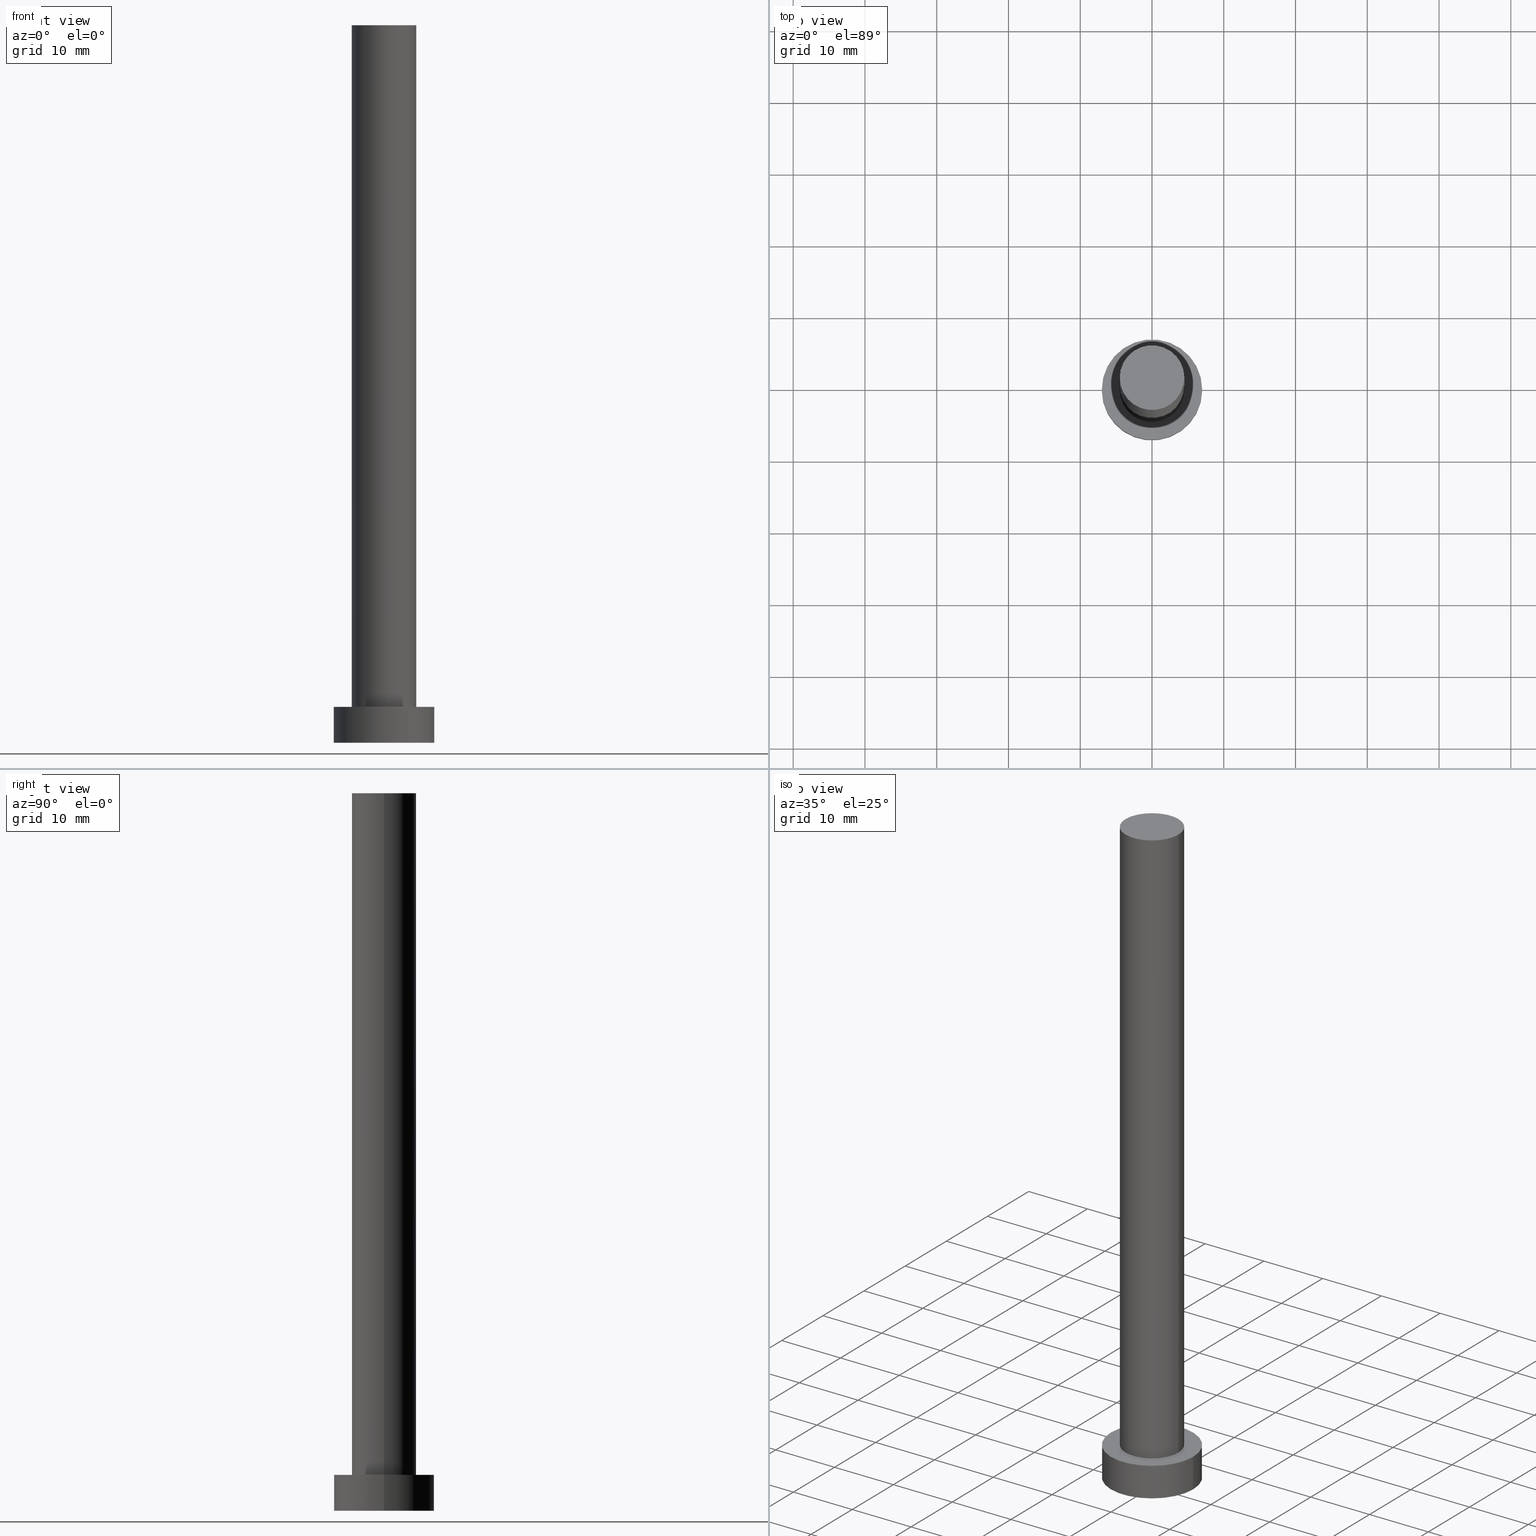
[diagram: canonical four-view strip — front | top / right | iso, engineering-drawing reading convention]
A machine part, canonical four-view strip (front | top / right | iso — engineering-drawing reading convention). The complete STEP part file that produces these views, byte-faithful:
ISO-10303-21;
HEADER;
FILE_DESCRIPTION (( 'STEP AP203' ),
    '1' );
FILE_NAME ('96f8.STEP',
    '2023-02-13T13:52:13',
    ( '' ),
    ( '' ),
    'SwSTEP 2.0',
    'SolidWorks 2019',
    '' );
FILE_SCHEMA (( 'CONFIG_CONTROL_DESIGN' ));
ENDSEC;

DATA;
#1 = AXIS2_PLACEMENT_3D ( 'NONE', #224, #6, #155 ) ;
#2 = EDGE_CURVE ( 'NONE', #249, #144, #247, .T. ) ;
#3 = APPROVAL_ROLE ( '' ) ;
#4 = PERSON_AND_ORGANIZATION ( #209, #250 ) ;
#5 = APPROVAL_STATUS ( 'not_yet_approved' ) ;
#6 = DIRECTION ( 'NONE',  ( 0.000000000000000000, 0.000000000000000000, 1.000000000000000000 ) ) ;
#7 = ORIENTED_EDGE ( 'NONE', *, *, #2, .F. ) ;
#8 = CARTESIAN_POINT ( 'NONE',  ( 7.000000000000000000, 8.572527594031473190E-16, 5.000000000000000000 ) ) ;
#9 = ORIENTED_EDGE ( 'NONE', *, *, #170, .T. ) ;
#10 = AXIS2_PLACEMENT_3D ( 'NONE', #125, #83, #46 ) ;
#11 = CARTESIAN_POINT ( 'NONE',  ( 4.500000000000000000, 5.510910596163088569E-16, 5.000000000000000000 ) ) ;
#12 = DATE_AND_TIME ( #255, #34 ) ;
#13 = DIRECTION ( 'NONE',  ( -0.000000000000000000, -0.000000000000000000, -1.000000000000000000 ) ) ;
#14 = FACE_OUTER_BOUND ( 'NONE', #66, .T. ) ;
#15 = APPROVAL_STATUS ( 'not_yet_approved' ) ;
#16 = ORIENTED_EDGE ( 'NONE', *, *, #149, .T. ) ;
#17 = ORIENTED_EDGE ( 'NONE', *, *, #41, .F. ) ;
#18 = ADVANCED_FACE ( 'NONE', ( #220 ), #200, .T. ) ;
#19 = DIRECTION ( 'NONE',  ( -0.000000000000000000, -0.000000000000000000, -1.000000000000000000 ) ) ;
#20 = EDGE_CURVE ( 'NONE', #249, #45, #159, .T. ) ;
#21 = APPLICATION_PROTOCOL_DEFINITION ( 'international standard', 'config_control_design', 1994, #109 ) ;
#22 = DIRECTION ( 'NONE',  ( 0.000000000000000000, 0.000000000000000000, 1.000000000000000000 ) ) ;
#23 = CC_DESIGN_PERSON_AND_ORGANIZATION_ASSIGNMENT ( #186, #51, ( #105 ) ) ;
#24 = DIRECTION ( 'NONE',  ( -0.000000000000000000, -0.000000000000000000, -1.000000000000000000 ) ) ;
#25 = DIRECTION ( 'NONE',  ( 0.000000000000000000, 0.000000000000000000, 1.000000000000000000 ) ) ;
#26 = DIRECTION ( 'NONE',  ( -1.000000000000000000, 0.000000000000000000, 0.000000000000000000 ) ) ;
#27 = CARTESIAN_POINT ( 'NONE',  ( 4.500000000000000000, 5.510910596163088569E-16, 100.0000000000000000 ) ) ;
#28 = DIRECTION ( 'NONE',  ( -0.000000000000000000, -0.000000000000000000, -1.000000000000000000 ) ) ;
#29 = CARTESIAN_POINT ( 'NONE',  ( 0.000000000000000000, 0.000000000000000000, 100.0000000000000000 ) ) ;
#30 = CARTESIAN_POINT ( 'NONE',  ( -4.500000000000000000, 0.000000000000000000, 100.0000000000000000 ) ) ;
#31 = ORIENTED_EDGE ( 'NONE', *, *, #216, .T. ) ;
#32 = CARTESIAN_POINT ( 'NONE',  ( -7.000000000000000000, 0.000000000000000000, 5.000000000000000000 ) ) ;
#33 = VERTEX_POINT ( 'NONE', #107 ) ;
#34 = LOCAL_TIME ( 14, 52, 13.00000000000000000, #204 ) ;
#35 = AXIS2_PLACEMENT_3D ( 'NONE', #157, #28, #26 ) ;
#36 = AXIS2_PLACEMENT_3D ( 'NONE', #180, #25, #112 ) ;
#37 = PERSON_AND_ORGANIZATION ( #209, #250 ) ;
#38 = PERSON_AND_ORGANIZATION_ROLE ( 'design_owner' ) ;
#39 = CARTESIAN_POINT ( 'NONE',  ( -4.500000000000000000, 0.000000000000000000, 5.000000000000000000 ) ) ;
#40 = CIRCLE ( 'NONE', #97, 7.000000000000000000 ) ;
#41 = EDGE_CURVE ( 'NONE', #45, #249, #232, .T. ) ;
#42 =( LENGTH_UNIT ( ) NAMED_UNIT ( * ) SI_UNIT ( .MILLI., .METRE. ) );
#43 = AXIS2_PLACEMENT_3D ( 'NONE', #199, #67, #196 ) ;
#44 = DIRECTION ( 'NONE',  ( 0.000000000000000000, 0.000000000000000000, 1.000000000000000000 ) ) ;
#45 = VERTEX_POINT ( 'NONE', #222 ) ;
#46 = DIRECTION ( 'NONE',  ( 1.000000000000000000, 0.000000000000000000, 0.000000000000000000 ) ) ;
#47 = ADVANCED_FACE ( 'NONE', ( #139, #195 ), #90, .T. ) ;
#48 = CYLINDRICAL_SURFACE ( 'NONE', #35, 7.000000000000000000 ) ;
#49 = CC_DESIGN_DATE_AND_TIME_ASSIGNMENT ( #77, #152, ( #207 ) ) ;
#50 = DIRECTION ( 'NONE',  ( 1.000000000000000000, 0.000000000000000000, -0.000000000000000000 ) ) ;
#51 = PERSON_AND_ORGANIZATION_ROLE ( 'classification_officer' ) ;
#52 = EDGE_LOOP ( 'NONE', ( #60, #156, #106, #245 ) ) ;
#53 = AXIS2_PLACEMENT_3D ( 'NONE', #29, #13, #89 ) ;
#54 = CARTESIAN_POINT ( 'NONE',  ( 0.000000000000000000, 0.000000000000000000, 100.0000000000000000 ) ) ;
#55 = DIRECTION ( 'NONE',  ( 1.000000000000000000, 0.000000000000000000, 0.000000000000000000 ) ) ;
#56 = APPROVAL_PERSON_ORGANIZATION ( #4, #183, #3 ) ;
#57 = AXIS2_PLACEMENT_3D ( 'NONE', #61, #44, #175 ) ;
#58 = UNCERTAINTY_MEASURE_WITH_UNIT (LENGTH_MEASURE( 1.000000000000000082E-05 ), #42, 'distance_accuracy_value', 'NONE');
#59 = DIRECTION ( 'NONE',  ( 1.000000000000000000, 0.000000000000000000, 0.000000000000000000 ) ) ;
#60 = ORIENTED_EDGE ( 'NONE', *, *, #20, .F. ) ;
#61 = CARTESIAN_POINT ( 'NONE',  ( 0.000000000000000000, 0.000000000000000000, 0.000000000000000000 ) ) ;
#62 = DIRECTION ( 'NONE',  ( -0.000000000000000000, -0.000000000000000000, -1.000000000000000000 ) ) ;
#63 = FACE_OUTER_BOUND ( 'NONE', #126, .T. ) ;
#64 = DATE_AND_TIME ( #208, #206 ) ;
#65 = CC_DESIGN_PERSON_AND_ORGANIZATION_ASSIGNMENT ( #226, #181, ( #234 ) ) ;
#66 = EDGE_LOOP ( 'NONE', ( #69, #158, #31, #177 ) ) ;
#67 = DIRECTION ( 'NONE',  ( 0.000000000000000000, 0.000000000000000000, 1.000000000000000000 ) ) ;
#68 = SECURITY_CLASSIFICATION_LEVEL ( 'unclassified' ) ;
#69 = ORIENTED_EDGE ( 'NONE', *, *, #235, .F. ) ;
#70 = DESIGN_CONTEXT ( 'detailed design', #109, 'design' ) ;
#71 = VECTOR ( 'NONE', #19, 1000.000000000000000 ) ;
#72 = AXIS2_PLACEMENT_3D ( 'NONE', #251, #137, #50 ) ;
#73 = ADVANCED_FACE ( 'NONE', ( #146 ), #48, .T. ) ;
#74 = CALENDAR_DATE ( 2023, 13, 2 ) ;
#75 = CALENDAR_DATE ( 2023, 13, 2 ) ;
#76 = AXIS2_PLACEMENT_3D ( 'NONE', #118, #135, #55 ) ;
#77 = DATE_AND_TIME ( #75, #80 ) ;
#78 = APPLICATION_PROTOCOL_DEFINITION ( 'international standard', 'config_control_design', 1994, #230 ) ;
#79 = DIRECTION ( 'NONE',  ( -1.000000000000000000, 0.000000000000000000, 0.000000000000000000 ) ) ;
#80 = LOCAL_TIME ( 14, 52, 13.00000000000000000, #101 ) ;
#81 = ORIENTED_EDGE ( 'NONE', *, *, #153, .F. ) ;
#82 = MANIFOLD_SOLID_BREP ( 'P�idat vysunut�m3', #237 ) ;
#83 = DIRECTION ( 'NONE',  ( 0.000000000000000000, 0.000000000000000000, 1.000000000000000000 ) ) ;
#84 = ORIENTED_EDGE ( 'NONE', *, *, #133, .T. ) ;
#85 = AXIS2_PLACEMENT_3D ( 'NONE', #162, #123, #217 ) ;
#86 = APPROVAL ( #161, 'NEUR�EN�' ) ;
#87 = CARTESIAN_POINT ( 'NONE',  ( 0.000000000000000000, 0.000000000000000000, 5.000000000000000000 ) ) ;
#88 = DATE_AND_TIME ( #254, #198 ) ;
#89 = DIRECTION ( 'NONE',  ( -1.000000000000000000, 0.000000000000000000, 0.000000000000000000 ) ) ;
#90 = PLANE ( 'NONE',  #43 ) ;
#91 =( GEOMETRIC_REPRESENTATION_CONTEXT ( 3 ) GLOBAL_UNCERTAINTY_ASSIGNED_CONTEXT ( ( #58 ) ) GLOBAL_UNIT_ASSIGNED_CONTEXT ( ( #42, #121, #238 ) ) REPRESENTATION_CONTEXT ( 'NONE', 'WORKASPACE' ) );
#92 = COORDINATED_UNIVERSAL_TIME_OFFSET ( 1, 0, .AHEAD. ) ;
#93 = ORIENTED_EDGE ( 'NONE', *, *, #133, .F. ) ;
#94 = CC_DESIGN_PERSON_AND_ORGANIZATION_ASSIGNMENT ( #132, #143, ( #234 ) ) ;
#95 = APPROVAL_DATE_TIME ( #88, #236 ) ;
#96 = VECTOR ( 'NONE', #62, 1000.000000000000000 ) ;
#97 = AXIS2_PLACEMENT_3D ( 'NONE', #99, #22, #100 ) ;
#98 = EDGE_CURVE ( 'NONE', #144, #223, #145, .T. ) ;
#99 = CARTESIAN_POINT ( 'NONE',  ( 0.000000000000000000, 0.000000000000000000, 0.000000000000000000 ) ) ;
#100 = DIRECTION ( 'NONE',  ( 1.000000000000000000, 0.000000000000000000, 0.000000000000000000 ) ) ;
#101 = COORDINATED_UNIVERSAL_TIME_OFFSET ( 1, 0, .AHEAD. ) ;
#102 = FACE_OUTER_BOUND ( 'NONE', #130, .T. ) ;
#103 = ORIENTED_EDGE ( 'NONE', *, *, #216, .F. ) ;
#104 = PLANE ( 'NONE',  #57 ) ;
#105 = SECURITY_CLASSIFICATION ( '', '', #68 ) ;
#106 = ORIENTED_EDGE ( 'NONE', *, *, #98, .T. ) ;
#107 = CARTESIAN_POINT ( 'NONE',  ( -7.000000000000000000, 0.000000000000000000, 5.000000000000000000 ) ) ;
#108 = ORIENTED_EDGE ( 'NONE', *, *, #188, .T. ) ;
#109 = APPLICATION_CONTEXT ( 'configuration controlled 3d designs of mechanical parts and assemblies' ) ;
#110 = CARTESIAN_POINT ( 'NONE',  ( 0.000000000000000000, 0.000000000000000000, 5.000000000000000000 ) ) ;
#111 = EDGE_LOOP ( 'NONE', ( #7, #17, #9, #16 ) ) ;
#112 = DIRECTION ( 'NONE',  ( 1.000000000000000000, 0.000000000000000000, 0.000000000000000000 ) ) ;
#113 = CC_DESIGN_APPROVAL ( #183, ( #207 ) ) ;
#114 = COORDINATED_UNIVERSAL_TIME_OFFSET ( 1, 0, .AHEAD. ) ;
#115 = ORIENTED_EDGE ( 'NONE', *, *, #153, .T. ) ;
#116 = ADVANCED_FACE ( 'NONE', ( #102 ), #104, .F. ) ;
#117 = LINE ( 'NONE', #215, #229 ) ;
#118 = CARTESIAN_POINT ( 'NONE',  ( 0.000000000000000000, 0.000000000000000000, 0.000000000000000000 ) ) ;
#119 = DATE_AND_TIME ( #74, #120 ) ;
#120 = LOCAL_TIME ( 14, 52, 13.00000000000000000, #239 ) ;
#121 =( NAMED_UNIT ( * ) PLANE_ANGLE_UNIT ( ) SI_UNIT ( $, .RADIAN. ) );
#122 = CARTESIAN_POINT ( 'NONE',  ( 0.000000000000000000, 0.000000000000000000, 100.0000000000000000 ) ) ;
#123 = DIRECTION ( 'NONE',  ( 0.000000000000000000, 0.000000000000000000, 1.000000000000000000 ) ) ;
#124 = VERTEX_POINT ( 'NONE', #179 ) ;
#125 = CARTESIAN_POINT ( 'NONE',  ( 0.000000000000000000, 0.000000000000000000, 5.000000000000000000 ) ) ;
#126 = EDGE_LOOP ( 'NONE', ( #205, #218 ) ) ;
#127 = DIRECTION ( 'NONE',  ( -0.000000000000000000, -0.000000000000000000, -1.000000000000000000 ) ) ;
#128 = VERTEX_POINT ( 'NONE', #8 ) ;
#129 = LINE ( 'NONE', #32, #71 ) ;
#130 = EDGE_LOOP ( 'NONE', ( #140, #81 ) ) ;
#131 = AXIS2_PLACEMENT_3D ( 'NONE', #87, #203, #219 ) ;
#132 = PERSON_AND_ORGANIZATION ( #209, #250 ) ;
#133 = EDGE_CURVE ( 'NONE', #128, #33, #191, .T. ) ;
#134 = PRODUCT_RELATED_PRODUCT_CATEGORY ( 'detail', '', ( #164 ) ) ;
#135 = DIRECTION ( 'NONE',  ( 0.000000000000000000, 0.000000000000000000, 1.000000000000000000 ) ) ;
#136 = ADVANCED_FACE ( 'NONE', ( #14 ), #246, .T. ) ;
#137 = DIRECTION ( 'NONE',  ( 0.000000000000000000, 0.000000000000000000, 1.000000000000000000 ) ) ;
#138 = ORIENTED_EDGE ( 'NONE', *, *, #98, .F. ) ;
#139 = FACE_BOUND ( 'NONE', #182, .T. ) ;
#140 = ORIENTED_EDGE ( 'NONE', *, *, #240, .F. ) ;
#141 = DIRECTION ( 'NONE',  ( 0.000000000000000000, 0.000000000000000000, 1.000000000000000000 ) ) ;
#142 = CC_DESIGN_SECURITY_CLASSIFICATION ( #105, ( #234 ) ) ;
#143 = PERSON_AND_ORGANIZATION_ROLE ( 'design_supplier' ) ;
#144 = VERTEX_POINT ( 'NONE', #11 ) ;
#145 = CIRCLE ( 'NONE', #36, 4.500000000000000000 ) ;
#146 = FACE_OUTER_BOUND ( 'NONE', #187, .T. ) ;
#147 = APPROVAL_ROLE ( '' ) ;
#148 = AXIS2_PLACEMENT_3D ( 'NONE', #122, #141, #201 ) ;
#149 = EDGE_CURVE ( 'NONE', #223, #144, #231, .T. ) ;
#150 = APPROVAL_DATE_TIME ( #119, #183 ) ;
#151 = DIRECTION ( 'NONE',  ( -1.000000000000000000, 0.000000000000000000, 0.000000000000000000 ) ) ;
#152 = DATE_TIME_ROLE ( 'creation_date' ) ;
#153 = EDGE_CURVE ( 'NONE', #227, #124, #214, .T. ) ;
#154 = CC_DESIGN_APPROVAL ( #86, ( #234 ) ) ;
#155 = DIRECTION ( 'NONE',  ( 1.000000000000000000, 0.000000000000000000, 0.000000000000000000 ) ) ;
#156 = ORIENTED_EDGE ( 'NONE', *, *, #2, .T. ) ;
#157 = CARTESIAN_POINT ( 'NONE',  ( 0.000000000000000000, 0.000000000000000000, 5.000000000000000000 ) ) ;
#158 = ORIENTED_EDGE ( 'NONE', *, *, #188, .F. ) ;
#159 = CIRCLE ( 'NONE', #85, 4.500000000000000000 ) ;
#160 = LINE ( 'NONE', #30, #211 ) ;
#161 = APPROVAL_STATUS ( 'not_yet_approved' ) ;
#162 = CARTESIAN_POINT ( 'NONE',  ( 0.000000000000000000, 0.000000000000000000, 100.0000000000000000 ) ) ;
#163 = PLANE ( 'NONE',  #72 ) ;
#164 = PRODUCT ( '96f8', '96f8', '', ( #213 ) ) ;
#165 = PERSON_AND_ORGANIZATION ( #209, #250 ) ;
#166 = APPROVAL_DATE_TIME ( #64, #86 ) ;
#167 = APPROVAL_ROLE ( '' ) ;
#168 = AXIS2_PLACEMENT_3D ( 'NONE', #54, #24, #151 ) ;
#169 = ADVANCED_BREP_SHAPE_REPRESENTATION ( '96f8', ( #82, #76 ), #91 ) ;
#170 = EDGE_CURVE ( 'NONE', #45, #223, #160, .T. ) ;
#171 = PERSON_AND_ORGANIZATION ( #209, #250 ) ;
#172 = CIRCLE ( 'NONE', #221, 7.000000000000000000 ) ;
#173 = CARTESIAN_POINT ( 'NONE',  ( 4.500000000000000000, 5.510910596163088569E-16, 100.0000000000000000 ) ) ;
#174 = CYLINDRICAL_SURFACE ( 'NONE', #168, 4.500000000000000000 ) ;
#175 = DIRECTION ( 'NONE',  ( 1.000000000000000000, 0.000000000000000000, -0.000000000000000000 ) ) ;
#176 = CC_DESIGN_PERSON_AND_ORGANIZATION_ASSIGNMENT ( #37, #38, ( #164 ) ) ;
#177 = ORIENTED_EDGE ( 'NONE', *, *, #240, .T. ) ;
#178 = CC_DESIGN_APPROVAL ( #236, ( #105 ) ) ;
#179 = CARTESIAN_POINT ( 'NONE',  ( -7.000000000000000000, 0.000000000000000000, 0.000000000000000000 ) ) ;
#180 = CARTESIAN_POINT ( 'NONE',  ( 0.000000000000000000, 0.000000000000000000, 5.000000000000000000 ) ) ;
#181 = PERSON_AND_ORGANIZATION_ROLE ( 'creator' ) ;
#182 = EDGE_LOOP ( 'NONE', ( #185, #138 ) ) ;
#183 = APPROVAL ( #5, 'NEUR�EN�' ) ;
#184 = CARTESIAN_POINT ( 'NONE',  ( 0.000000000000000000, 0.000000000000000000, 5.000000000000000000 ) ) ;
#185 = ORIENTED_EDGE ( 'NONE', *, *, #149, .F. ) ;
#186 = PERSON_AND_ORGANIZATION ( #209, #250 ) ;
#187 = EDGE_LOOP ( 'NONE', ( #93, #197, #115, #103 ) ) ;
#188 = EDGE_CURVE ( 'NONE', #33, #128, #172, .T. ) ;
#189 = DATE_TIME_ROLE ( 'classification_date' ) ;
#190 = APPROVAL_PERSON_ORGANIZATION ( #241, #86, #167 ) ;
#191 = CIRCLE ( 'NONE', #10, 7.000000000000000000 ) ;
#192 = CC_DESIGN_PERSON_AND_ORGANIZATION_ASSIGNMENT ( #171, #212, ( #207 ) ) ;
#193 = CARTESIAN_POINT ( 'NONE',  ( 7.000000000000000000, 8.572527594031473190E-16, 0.000000000000000000 ) ) ;
#194 = DIRECTION ( 'NONE',  ( -0.000000000000000000, -0.000000000000000000, -1.000000000000000000 ) ) ;
#195 = FACE_OUTER_BOUND ( 'NONE', #252, .T. ) ;
#196 = DIRECTION ( 'NONE',  ( 1.000000000000000000, 0.000000000000000000, -0.000000000000000000 ) ) ;
#197 = ORIENTED_EDGE ( 'NONE', *, *, #235, .T. ) ;
#198 = LOCAL_TIME ( 14, 52, 13.00000000000000000, #92 ) ;
#199 = CARTESIAN_POINT ( 'NONE',  ( 0.000000000000000000, 0.000000000000000000, 5.000000000000000000 ) ) ;
#200 = CYLINDRICAL_SURFACE ( 'NONE', #53, 4.500000000000000000 ) ;
#201 = DIRECTION ( 'NONE',  ( 1.000000000000000000, 0.000000000000000000, 0.000000000000000000 ) ) ;
#202 = SHAPE_DEFINITION_REPRESENTATION ( #228, #169 ) ;
#203 = DIRECTION ( 'NONE',  ( 0.000000000000000000, 0.000000000000000000, 1.000000000000000000 ) ) ;
#204 = COORDINATED_UNIVERSAL_TIME_OFFSET ( 1, 0, .AHEAD. ) ;
#205 = ORIENTED_EDGE ( 'NONE', *, *, #41, .T. ) ;
#206 = LOCAL_TIME ( 14, 52, 13.00000000000000000, #114 ) ;
#207 = PRODUCT_DEFINITION ( 'NEZN�M�', '', #234, #70 ) ;
#208 = CALENDAR_DATE ( 2023, 13, 2 ) ;
#209 = PERSON ( 'NEUR�EN�', 'NEUR�EN�', 'NEUR�EN�', ('NEUR�EN�'), ('NEUR�EN�'), ('NEUR�EN�') ) ;
#210 = ADVANCED_FACE ( 'NONE', ( #63 ), #163, .T. ) ;
#211 = VECTOR ( 'NONE', #248, 1000.000000000000000 ) ;
#212 = PERSON_AND_ORGANIZATION_ROLE ( 'creator' ) ;
#213 = MECHANICAL_CONTEXT ( 'NONE', #230, 'mechanical' ) ;
#214 = CIRCLE ( 'NONE', #1, 7.000000000000000000 ) ;
#215 = CARTESIAN_POINT ( 'NONE',  ( 7.000000000000000000, 8.572527594031473190E-16, 5.000000000000000000 ) ) ;
#216 = EDGE_CURVE ( 'NONE', #33, #124, #129, .T. ) ;
#217 = DIRECTION ( 'NONE',  ( 1.000000000000000000, 0.000000000000000000, 0.000000000000000000 ) ) ;
#218 = ORIENTED_EDGE ( 'NONE', *, *, #20, .T. ) ;
#219 = DIRECTION ( 'NONE',  ( 1.000000000000000000, 0.000000000000000000, 0.000000000000000000 ) ) ;
#220 = FACE_OUTER_BOUND ( 'NONE', #111, .T. ) ;
#221 = AXIS2_PLACEMENT_3D ( 'NONE', #184, #244, #59 ) ;
#222 = CARTESIAN_POINT ( 'NONE',  ( -4.500000000000000000, 0.000000000000000000, 100.0000000000000000 ) ) ;
#223 = VERTEX_POINT ( 'NONE', #39 ) ;
#224 = CARTESIAN_POINT ( 'NONE',  ( 0.000000000000000000, 0.000000000000000000, 0.000000000000000000 ) ) ;
#225 = ADVANCED_FACE ( 'NONE', ( #242 ), #174, .T. ) ;
#226 = PERSON_AND_ORGANIZATION ( #209, #250 ) ;
#227 = VERTEX_POINT ( 'NONE', #193 ) ;
#228 = PRODUCT_DEFINITION_SHAPE ( 'NONE', 'NONE',  #207 ) ;
#229 = VECTOR ( 'NONE', #194, 1000.000000000000000 ) ;
#230 = APPLICATION_CONTEXT ( 'configuration controlled 3d designs of mechanical parts and assemblies' ) ;
#231 = CIRCLE ( 'NONE', #131, 4.500000000000000000 ) ;
#232 = CIRCLE ( 'NONE', #148, 4.500000000000000000 ) ;
#233 = CC_DESIGN_DATE_AND_TIME_ASSIGNMENT ( #12, #189, ( #105 ) ) ;
#234 = PRODUCT_DEFINITION_FORMATION_WITH_SPECIFIED_SOURCE ( 'LIBOVOLN�', '', #164, .NOT_KNOWN. ) ;
#235 = EDGE_CURVE ( 'NONE', #128, #227, #117, .T. ) ;
#236 = APPROVAL ( #15, 'NEUR�EN�' ) ;
#237 = CLOSED_SHELL ( 'NONE', ( #225, #73, #136, #47, #116, #18, #210 ) ) ;
#238 =( NAMED_UNIT ( * ) SI_UNIT ( $, .STERADIAN. ) SOLID_ANGLE_UNIT ( ) );
#239 = COORDINATED_UNIVERSAL_TIME_OFFSET ( 1, 0, .AHEAD. ) ;
#240 = EDGE_CURVE ( 'NONE', #124, #227, #40, .T. ) ;
#241 = PERSON_AND_ORGANIZATION ( #209, #250 ) ;
#242 = FACE_OUTER_BOUND ( 'NONE', #52, .T. ) ;
#243 = APPROVAL_PERSON_ORGANIZATION ( #165, #236, #147 ) ;
#244 = DIRECTION ( 'NONE',  ( 0.000000000000000000, 0.000000000000000000, 1.000000000000000000 ) ) ;
#245 = ORIENTED_EDGE ( 'NONE', *, *, #170, .F. ) ;
#246 = CYLINDRICAL_SURFACE ( 'NONE', #253, 7.000000000000000000 ) ;
#247 = LINE ( 'NONE', #27, #96 ) ;
#248 = DIRECTION ( 'NONE',  ( -0.000000000000000000, -0.000000000000000000, -1.000000000000000000 ) ) ;
#249 = VERTEX_POINT ( 'NONE', #173 ) ;
#250 = ORGANIZATION ( 'NEUR�EN�', 'NEUR�EN�', '' ) ;
#251 = CARTESIAN_POINT ( 'NONE',  ( 0.000000000000000000, 0.000000000000000000, 100.0000000000000000 ) ) ;
#252 = EDGE_LOOP ( 'NONE', ( #108, #84 ) ) ;
#253 = AXIS2_PLACEMENT_3D ( 'NONE', #110, #127, #79 ) ;
#254 = CALENDAR_DATE ( 2023, 13, 2 ) ;
#255 = CALENDAR_DATE ( 2023, 13, 2 ) ;
ENDSEC;
END-ISO-10303-21;
